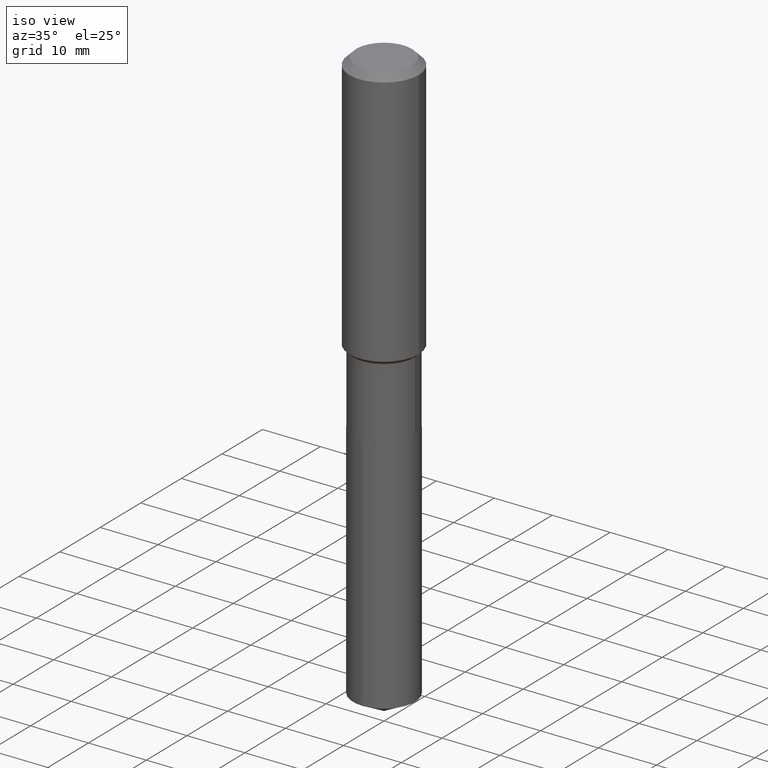
[diagram: clean part render]
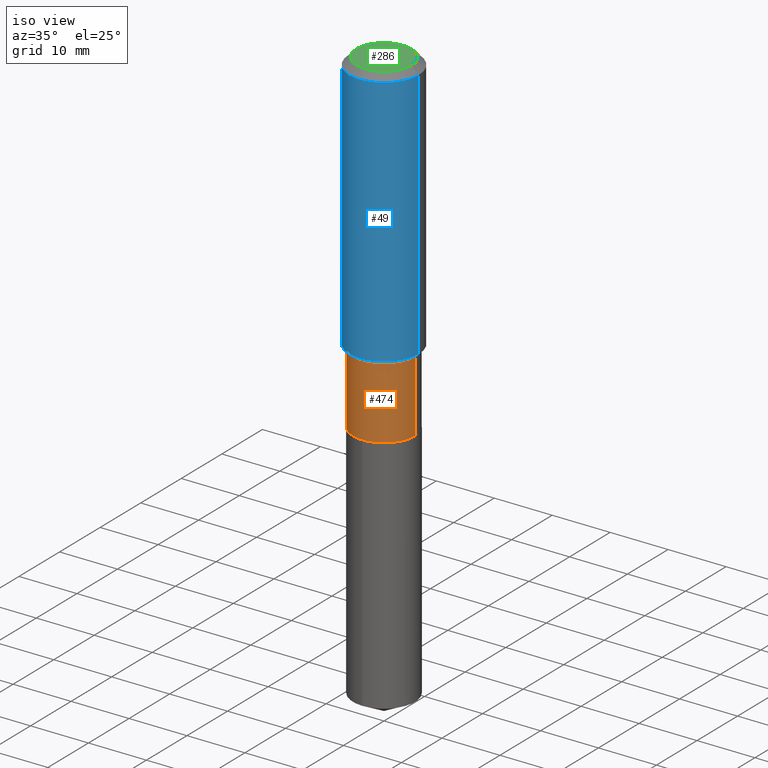
[diagram: same view with three faces highlighted in distinct colors, each labeled with its STEP entity id]
A machine part, iso view with three faces highlighted in distinct colors.
Their STEP definitions:

[orange] entity #474 — the highlighted cylindrical surface (partial cylindrical patch) has radius 5.3505 mm, axis along (-0, 0, 1).
#62 = CARTESIAN_POINT ( 'NONE',  ( -0.2106500000000000039, -5.587806511767975548E-15, -2.271100000000000119 ) ) ;
#68 = CARTESIAN_POINT ( 'NONE',  ( -0.2106499999999999484, -5.587806511767975548E-15, -1.787099999999999911 ) ) ;
#73 = ORIENTED_EDGE ( 'NONE', *, *, #443, .T. ) ;
#81 = VECTOR ( 'NONE', #359, 39.37007874015748143 ) ;
#95 = CARTESIAN_POINT ( 'NONE',  ( 5.553904205727063700E-29, -7.929503268646668266E-15, -2.271100000000000119 ) ) ;
#107 = ORIENTED_EDGE ( 'NONE', *, *, #252, .F. ) ;
#108 = AXIS2_PLACEMENT_3D ( 'NONE', #95, #141, #338 ) ;
#130 = DIRECTION ( 'NONE',  ( 1.000000000000000000, -6.982962677686267499E-15, 0.000000000000000000 ) ) ;
#141 = DIRECTION ( 'NONE',  ( -2.445468806185136597E-29, 3.491481338843145583E-15, 1.000000000000000000 ) ) ;
#143 = EDGE_CURVE ( 'NONE', #356, #281, #471, .T. ) ;
#151 = CIRCLE ( 'NONE', #291, 0.2106499999999999484 ) ;
#152 = DIRECTION ( 'NONE',  ( -2.445468806185136597E-29, 3.491481338843145583E-15, 1.000000000000000000 ) ) ;
#155 = CYLINDRICAL_SURFACE ( 'NONE', #200, 0.2106499999999999762 ) ;
#161 = VERTEX_POINT ( 'NONE', #406 ) ;
#162 = CARTESIAN_POINT ( 'NONE',  ( -0.2106499999999999762, 1.496758272878650872E-15, -1.036173676762195916E-29 ) ) ;
#167 = VECTOR ( 'NONE', #404, 39.37007874015748143 ) ;
#200 = AXIS2_PLACEMENT_3D ( 'NONE', #317, #152, #432 ) ;
#207 = VERTEX_POINT ( 'NONE', #215 ) ;
#215 = CARTESIAN_POINT ( 'NONE',  ( 0.2106499999999999484, -7.710587388701196730E-15, -1.787099999999999911 ) ) ;
#252 = EDGE_CURVE ( 'NONE', #281, #207, #151, .T. ) ;
#281 = VERTEX_POINT ( 'NONE', #68 ) ;
#291 = AXIS2_PLACEMENT_3D ( 'NONE', #410, #475, #130 ) ;
#293 = EDGE_CURVE ( 'NONE', #356, #161, #352, .T. ) ;
#295 = LINE ( 'NONE', #433, #81 ) ;
#317 = CARTESIAN_POINT ( 'NONE',  ( 0.000000000000000000, 0.000000000000000000, 0.000000000000000000 ) ) ;
#338 = DIRECTION ( 'NONE',  ( 1.000000000000000000, -6.982962677686270655E-15, 0.000000000000000000 ) ) ;
#352 = CIRCLE ( 'NONE', #108, 0.2106500000000000039 ) ;
#354 = ORIENTED_EDGE ( 'NONE', *, *, #143, .F. ) ;
#356 = VERTEX_POINT ( 'NONE', #62 ) ;
#359 = DIRECTION ( 'NONE',  ( -2.445468806185136877E-29, 3.491481338843145188E-15, 1.000000000000000000 ) ) ;
#398 = FACE_OUTER_BOUND ( 'NONE', #400, .T. ) ;
#400 = EDGE_LOOP ( 'NONE', ( #354, #465, #73, #107 ) ) ;
#404 = DIRECTION ( 'NONE',  ( -2.445468806185136877E-29, 3.491481338843145188E-15, 1.000000000000000000 ) ) ;
#406 = CARTESIAN_POINT ( 'NONE',  ( 0.2106500000000000039, -9.400464356701280026E-15, -2.271100000000000119 ) ) ;
#410 = CARTESIAN_POINT ( 'NONE',  ( 4.370297303533457201E-29, -6.239626300646584969E-15, -1.787099999999999911 ) ) ;
#432 = DIRECTION ( 'NONE',  ( 1.000000000000000000, -6.982962677686266711E-15, 4.876176775795935793E-29 ) ) ;
#433 = CARTESIAN_POINT ( 'NONE',  ( 0.2106499999999999762, -1.470961088054611958E-15, 1.027166637821413806E-29 ) ) ;
#443 = EDGE_CURVE ( 'NONE', #161, #207, #295, .T. ) ;
#465 = ORIENTED_EDGE ( 'NONE', *, *, #293, .T. ) ;
#471 = LINE ( 'NONE', #162, #167 ) ;
#474 = ADVANCED_FACE ( 'NONE', ( #398 ), #155, .T. ) ;
#475 = DIRECTION ( 'NONE',  ( -2.445468806185136597E-29, 3.491481338843145583E-15, 1.000000000000000000 ) ) ;

[blue] entity #49 — the highlighted cylindrical surface (partial cylindrical patch) has radius 5.9995 mm, axis along (-0, 0, 1).
#4 = CARTESIAN_POINT ( 'NONE',  ( 0.2362000000000001043, -1.649375784469496920E-15, 1.151752954443000508E-29 ) ) ;
#8 = DIRECTION ( 'NONE',  ( -2.445468806185136597E-29, 3.491481338843145583E-15, 1.000000000000000000 ) ) ;
#11 = DIRECTION ( 'NONE',  ( 1.000000000000000000, -6.982962677686266711E-15, 0.000000000000000000 ) ) ;
#38 = VERTEX_POINT ( 'NONE', #270 ) ;
#39 = EDGE_CURVE ( 'NONE', #418, #374, #259, .T. ) ;
#49 = ADVANCED_FACE ( 'NONE', ( #472 ), #441, .T. ) ;
#57 = DIRECTION ( 'NONE',  ( -2.445468806185136877E-29, 3.491481338843145188E-15, 1.000000000000000000 ) ) ;
#89 = VECTOR ( 'NONE', #57, 39.37007874015748143 ) ;
#94 = DIRECTION ( 'NONE',  ( -2.445468806185136877E-29, 3.491481338843145188E-15, 1.000000000000000000 ) ) ;
#126 = CIRCLE ( 'NONE', #413, 0.2361999999999999933 ) ;
#144 = CARTESIAN_POINT ( 'NONE',  ( 0.2361999999999999933, -1.814313362916447440E-15, -0.04724000000000028177 ) ) ;
#147 = EDGE_LOOP ( 'NONE', ( #345, #150, #153, #282 ) ) ;
#148 = CARTESIAN_POINT ( 'NONE',  ( 1.155239464041865506E-30, -1.649375784469511859E-16, -0.04724000000000028177 ) ) ;
#150 = ORIENTED_EDGE ( 'NONE', *, *, #464, .T. ) ;
#153 = ORIENTED_EDGE ( 'NONE', *, *, #428, .T. ) ;
#171 = AXIS2_PLACEMENT_3D ( 'NONE', #245, #447, #251 ) ;
#179 = CARTESIAN_POINT ( 'NONE',  ( -0.2361999999999999933, -1.479376323577688976E-15, -0.04724000000000028177 ) ) ;
#183 = DIRECTION ( 'NONE',  ( 1.000000000000000000, -6.982962677686266711E-15, 0.000000000000000000 ) ) ;
#185 = LINE ( 'NONE', #4, #267 ) ;
#223 = DIRECTION ( 'NONE',  ( -2.445468806185136597E-29, 3.491481338843145583E-15, 1.000000000000000000 ) ) ;
#245 = CARTESIAN_POINT ( 'NONE',  ( 0.000000000000000000, 0.000000000000000000, 0.000000000000000000 ) ) ;
#251 = DIRECTION ( 'NONE',  ( 1.000000000000000000, -6.982962677686266711E-15, 4.876176775795935793E-29 ) ) ;
#259 = LINE ( 'NONE', #479, #89 ) ;
#267 = VECTOR ( 'NONE', #94, 39.37007874015748143 ) ;
#270 = CARTESIAN_POINT ( 'NONE',  ( 0.2362000000000002153, -7.799794736908639901E-15, -1.761549999999999727 ) ) ;
#282 = ORIENTED_EDGE ( 'NONE', *, *, #399, .F. ) ;
#345 = ORIENTED_EDGE ( 'NONE', *, *, #39, .F. ) ;
#355 = CARTESIAN_POINT ( 'NONE',  ( 4.307815575535426705E-29, -6.150418952439141798E-15, -1.761549999999999727 ) ) ;
#370 = CIRCLE ( 'NONE', #377, 0.2362000000000002153 ) ;
#374 = VERTEX_POINT ( 'NONE', #179 ) ;
#377 = AXIS2_PLACEMENT_3D ( 'NONE', #355, #8, #11 ) ;
#399 = EDGE_CURVE ( 'NONE', #374, #427, #126, .T. ) ;
#411 = CARTESIAN_POINT ( 'NONE',  ( -0.2362000000000002153, -4.472117010573783826E-15, -1.761549999999999727 ) ) ;
#413 = AXIS2_PLACEMENT_3D ( 'NONE', #148, #223, #183 ) ;
#418 = VERTEX_POINT ( 'NONE', #411 ) ;
#427 = VERTEX_POINT ( 'NONE', #144 ) ;
#428 = EDGE_CURVE ( 'NONE', #38, #427, #185, .T. ) ;
#441 = CYLINDRICAL_SURFACE ( 'NONE', #171, 0.2362000000000001043 ) ;
#447 = DIRECTION ( 'NONE',  ( -2.445468806185136597E-29, 3.491481338843145583E-15, 1.000000000000000000 ) ) ;
#464 = EDGE_CURVE ( 'NONE', #418, #38, #370, .T. ) ;
#472 = FACE_OUTER_BOUND ( 'NONE', #147, .T. ) ;
#479 = CARTESIAN_POINT ( 'NONE',  ( -0.2362000000000001043, 1.678301941865357380E-15, -1.161852468318209317E-29 ) ) ;

[green] entity #286 — the highlighted planar face has unit normal (0, -0, -1).
#10 = ORIENTED_EDGE ( 'NONE', *, *, #217, .T. ) ;
#13 = CARTESIAN_POINT ( 'NONE',  ( -9.427742298522546243E-47, 1.346031739168365344E-32, 3.855188123715862256E-18 ) ) ;
#33 = FACE_OUTER_BOUND ( 'NONE', #229, .T. ) ;
#61 = DIRECTION ( 'NONE',  ( 2.438088387897960049E-29, -3.491481338843145188E-15, -1.000000000000000000 ) ) ;
#74 = ORIENTED_EDGE ( 'NONE', *, *, #136, .T. ) ;
#86 = CARTESIAN_POINT ( 'NONE',  ( -9.427742298522546243E-47, 1.346031739168365344E-32, 3.855188123715862256E-18 ) ) ;
#90 = DIRECTION ( 'NONE',  ( 1.000000000000000000, -6.982962677686266711E-15, 4.876185090822587894E-29 ) ) ;
#105 = PLANE ( 'NONE',  #219 ) ;
#132 = DIRECTION ( 'NONE',  ( -2.445468806185136597E-29, 3.491481338843145583E-15, 1.000000000000000000 ) ) ;
#136 = EDGE_CURVE ( 'NONE', #230, #182, #415, .T. ) ;
#182 = VERTEX_POINT ( 'NONE', #332 ) ;
#190 = CIRCLE ( 'NONE', #299, 0.1889600000000000168 ) ;
#217 = EDGE_CURVE ( 'NONE', #182, #230, #190, .T. ) ;
#219 = AXIS2_PLACEMENT_3D ( 'NONE', #305, #61, #258 ) ;
#229 = EDGE_LOOP ( 'NONE', ( #74, #10 ) ) ;
#230 = VERTEX_POINT ( 'NONE', #292 ) ;
#258 = DIRECTION ( 'NONE',  ( -1.000000000000000000, 6.982962677686265922E-15, -4.876176775795935793E-29 ) ) ;
#278 = AXIS2_PLACEMENT_3D ( 'NONE', #13, #330, #90 ) ;
#286 = ADVANCED_FACE ( 'NONE', ( #33 ), #105, .F. ) ;
#287 = DIRECTION ( 'NONE',  ( 1.000000000000000000, -6.982962677686266711E-15, 4.876185090822587894E-29 ) ) ;
#292 = CARTESIAN_POINT ( 'NONE',  ( -0.1889600000000000168, 1.401969416799070942E-15, 3.855188123706346622E-18 ) ) ;
#299 = AXIS2_PLACEMENT_3D ( 'NONE', #86, #132, #287 ) ;
#305 = CARTESIAN_POINT ( 'NONE',  ( -4.713871149261273121E-47, 6.730158695841826722E-33, 1.927594061857931128E-18 ) ) ;
#330 = DIRECTION ( 'NONE',  ( -2.445468806185136597E-29, 3.491481338843145583E-15, 1.000000000000000000 ) ) ;
#332 = CARTESIAN_POINT ( 'NONE',  ( 0.1889600000000000168, -1.540873453589747738E-15, 3.855188123725863225E-18 ) ) ;
#415 = CIRCLE ( 'NONE', #278, 0.1889600000000000168 ) ;